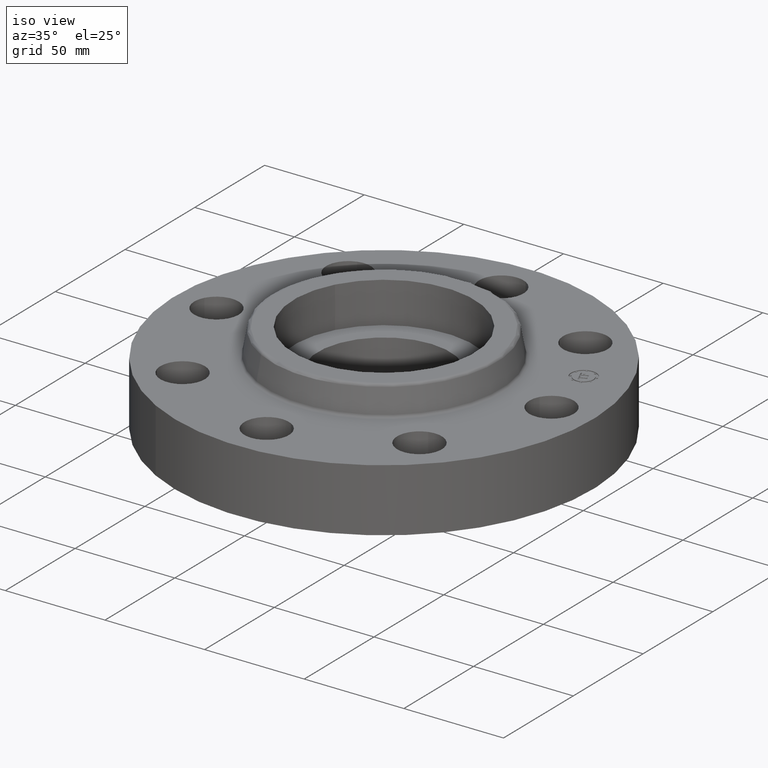
[diagram: clean part render]
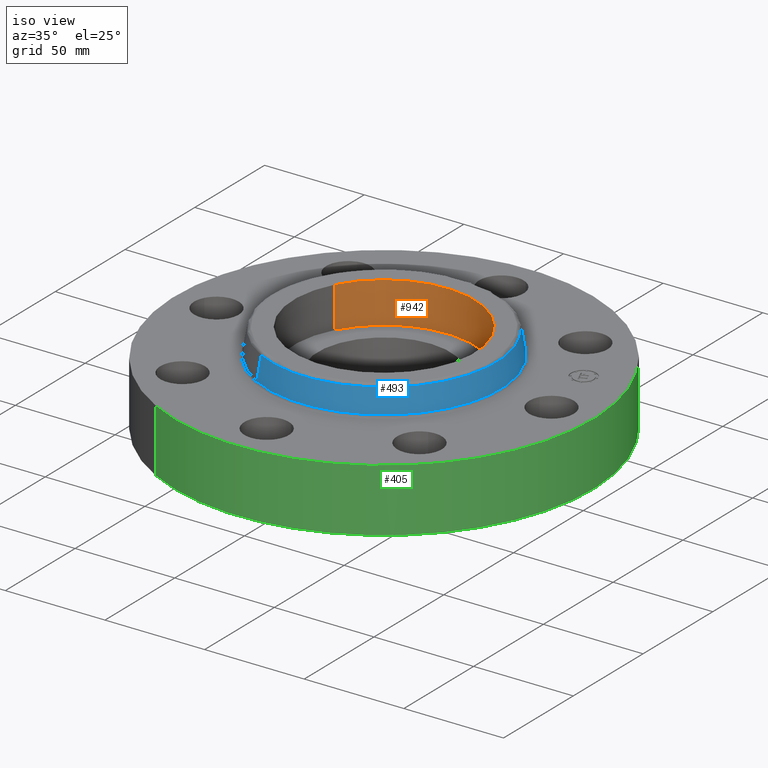
[diagram: same view with three faces highlighted in distinct colors, each labeled with its STEP entity id]
A machine part, iso view with three faces highlighted in distinct colors.
Their STEP definitions:

[orange] entity #942 — the highlighted cylindrical surface (partial cylindrical patch) has radius 45.339 mm, axis along (0, 0, -1).
#42=AXIS2_PLACEMENT_3D('Circle Axis2P3D',#40,#41,$) ;
#560=AXIS2_PLACEMENT_3D('Circle Axis2P3D',#558,#559,$) ;
#924=AXIS2_PLACEMENT_3D('Cylinder Axis2P3D',#921,#922,#923) ;
#40=CARTESIAN_POINT('Axis2P3D Location',(1.39870617276E-016,3.84644197508E-016,1.)) ;
#44=CARTESIAN_POINT('Vertex',(-1.56648487298,0.855774586412,1.)) ;
#46=CARTESIAN_POINT('Vertex',(1.56648487298,-0.855774586412,1.)) ;
#558=CARTESIAN_POINT('Axis2P3D Location',(-1.39870617276E-016,8.39223703654E-016,1.81000000001)) ;
#562=CARTESIAN_POINT('Vertex',(-1.56648487298,0.855774586412,1.81000000001)) ;
#564=CARTESIAN_POINT('Vertex',(1.56648487298,-0.855774586412,1.81000000001)) ;
#921=CARTESIAN_POINT('Axis2P3D Location',(1.39870617276E-016,3.84644197508E-016,1.80606299213)) ;
#926=CARTESIAN_POINT('Line Origine',(-1.56648487298,0.855774586412,1.40500000001)) ;
#931=CARTESIAN_POINT('Line Origine',(1.56648487298,-0.855774586412,1.40500000001)) ;
#41=DIRECTION('Axis2P3D Direction',(0.,0.,-0.0393700787402)) ;
#559=DIRECTION('Axis2P3D Direction',(0.,0.,-0.0393700787402)) ;
#922=DIRECTION('Axis2P3D Direction',(0.,0.,-0.0393700787402)) ;
#923=DIRECTION('Axis2P3D XDirection',(0.0345504945626,-0.0188750212049,0.)) ;
#927=DIRECTION('Vector Direction',(0.,0.,-0.0393700787402)) ;
#932=DIRECTION('Vector Direction',(0.,0.,-0.0393700787402)) ;
#928=VECTOR('Line Direction',#927,0.0393700787402) ;
#933=VECTOR('Line Direction',#932,0.0393700787402) ;
#937=ORIENTED_EDGE('',*,*,#566,.F.) ;
#938=ORIENTED_EDGE('',*,*,#930,.F.) ;
#939=ORIENTED_EDGE('',*,*,#48,.T.) ;
#940=ORIENTED_EDGE('',*,*,#935,.T.) ;
#942=ADVANCED_FACE('PartBody',(#941),#925,.F.) ;
#43=CIRCLE('generated circle',#42,1.78500000001) ;
#561=CIRCLE('generated circle',#560,1.78500000001) ;
#925=CYLINDRICAL_SURFACE('generated cylinder',#924,1.78500000001) ;
#48=EDGE_CURVE('',#45,#47,#43,.T.) ;
#566=EDGE_CURVE('',#563,#565,#561,.T.) ;
#930=EDGE_CURVE('',#45,#563,#929,.F.) ;
#935=EDGE_CURVE('',#47,#565,#934,.F.) ;
#936=EDGE_LOOP('',(#937,#938,#939,#940)) ;
#941=FACE_OUTER_BOUND('',#936,.T.) ;
#929=LINE('Line',#926,#928) ;
#934=LINE('Line',#931,#933) ;
#45=VERTEX_POINT('',#44) ;
#47=VERTEX_POINT('',#46) ;
#563=VERTEX_POINT('',#562) ;
#565=VERTEX_POINT('',#564) ;

[blue] entity #493 — the highlighted conical surface has half-angle 10 deg.
#429=AXIS2_PLACEMENT_3D('Circle Axis2P3D',#427,#428,$) ;
#466=AXIS2_PLACEMENT_3D('Cone Axis2P3D',#463,#464,#465) ;
#477=AXIS2_PLACEMENT_3D('Circle Axis2P3D',#475,#476,$) ;
#424=CARTESIAN_POINT('Vertex',(1.10328162249,2.01954346356,1.29958110935)) ;
#427=CARTESIAN_POINT('Axis2P3D Location',(0.,0.,1.29958110935)) ;
#431=CARTESIAN_POINT('Vertex',(-1.10328162249,-2.01954346356,1.29958110935)) ;
#463=CARTESIAN_POINT('Axis2P3D Location',(0.,0.,1.76041889067)) ;
#468=CARTESIAN_POINT('Line Origine',(1.08380301002,1.98388810261,1.53000000001)) ;
#472=CARTESIAN_POINT('Vertex',(1.06432439756,1.94823274165,1.76041889067)) ;
#475=CARTESIAN_POINT('Axis2P3D Location',(0.,0.,1.76041889067)) ;
#479=CARTESIAN_POINT('Vertex',(-1.06432439756,-1.94823274165,1.76041889067)) ;
#482=CARTESIAN_POINT('Line Origine',(-1.08380301002,-1.98388810261,1.53000000001)) ;
#428=DIRECTION('Axis2P3D Direction',(0.,0.,-0.0393700787402)) ;
#464=DIRECTION('Axis2P3D Direction',(0.,0.,-0.0393700787402)) ;
#465=DIRECTION('Axis2P3D XDirection',(-0.0188750212049,-0.0345504945626,0.)) ;
#469=DIRECTION('Vector Direction',(0.00327761303565,0.00599963041829,-0.03877195878)) ;
#476=DIRECTION('Axis2P3D Direction',(0.,0.,-0.0393700787402)) ;
#483=DIRECTION('Vector Direction',(-0.00327761303565,-0.00599963041829,-0.03877195878)) ;
#470=VECTOR('Line Direction',#469,0.0393700787402) ;
#484=VECTOR('Line Direction',#483,0.0393700787402) ;
#488=ORIENTED_EDGE('',*,*,#433,.F.) ;
#489=ORIENTED_EDGE('',*,*,#474,.T.) ;
#490=ORIENTED_EDGE('',*,*,#481,.T.) ;
#491=ORIENTED_EDGE('',*,*,#486,.F.) ;
#493=ADVANCED_FACE('PartBody',(#492),#467,.T.) ;
#430=CIRCLE('generated circle',#429,2.3012575127) ;
#478=CIRCLE('generated circle',#477,2.21999937812) ;
#467=CONICAL_SURFACE('Cone',#466,2.21999937812,0.174532925199) ;
#433=EDGE_CURVE('',#425,#432,#430,.T.) ;
#474=EDGE_CURVE('',#425,#473,#471,.F.) ;
#481=EDGE_CURVE('',#473,#480,#478,.T.) ;
#486=EDGE_CURVE('',#432,#480,#485,.F.) ;
#487=EDGE_LOOP('',(#488,#489,#490,#491)) ;
#492=FACE_OUTER_BOUND('',#487,.T.) ;
#471=LINE('Line',#468,#470) ;
#485=LINE('Line',#482,#484) ;
#425=VERTEX_POINT('',#424) ;
#432=VERTEX_POINT('',#431) ;
#473=VERTEX_POINT('',#472) ;
#480=VERTEX_POINT('',#479) ;

[green] entity #405 — the highlighted cylindrical surface (partial cylindrical patch) has radius 104.775 mm, axis along (0, 0, -1).
#207=AXIS2_PLACEMENT_3D('Circle Axis2P3D',#205,#206,$) ;
#366=AXIS2_PLACEMENT_3D('Cylinder Axis2P3D',#363,#364,#365) ;
#396=AXIS2_PLACEMENT_3D('Circle Axis2P3D',#394,#395,$) ;
#200=CARTESIAN_POINT('Vertex',(-1.97763034675,-3.62002806781,6.99353086378E-016)) ;
#202=CARTESIAN_POINT('Vertex',(1.97763034675,3.62002806781,6.99353086378E-016)) ;
#205=CARTESIAN_POINT('Axis2P3D Location',(0.,0.,0.)) ;
#363=CARTESIAN_POINT('Axis2P3D Location',(0.,0.,0.780000000003)) ;
#368=CARTESIAN_POINT('Line Origine',(-1.97763034675,-3.62002806781,0.625000000003)) ;
#372=CARTESIAN_POINT('Vertex',(-1.97763034675,-3.62002806781,1.25000000001)) ;
#379=CARTESIAN_POINT('Vertex',(1.97763034675,3.62002806781,1.25000000001)) ;
#382=CARTESIAN_POINT('Line Origine',(1.97763034675,3.62002806781,0.625000000003)) ;
#394=CARTESIAN_POINT('Axis2P3D Location',(0.,0.,1.25000000001)) ;
#206=DIRECTION('Axis2P3D Direction',(0.,0.,-0.0393700787402)) ;
#364=DIRECTION('Axis2P3D Direction',(0.,0.,-0.0393700787402)) ;
#365=DIRECTION('Axis2P3D XDirection',(0.0188750212049,0.0345504945626,0.)) ;
#369=DIRECTION('Vector Direction',(0.,0.,-0.0393700787402)) ;
#383=DIRECTION('Vector Direction',(0.,0.,-0.0393700787402)) ;
#395=DIRECTION('Axis2P3D Direction',(0.,0.,-0.0393700787402)) ;
#370=VECTOR('Line Direction',#369,0.0393700787402) ;
#384=VECTOR('Line Direction',#383,0.0393700787402) ;
#400=ORIENTED_EDGE('',*,*,#209,.F.) ;
#401=ORIENTED_EDGE('',*,*,#386,.T.) ;
#402=ORIENTED_EDGE('',*,*,#398,.T.) ;
#403=ORIENTED_EDGE('',*,*,#374,.F.) ;
#405=ADVANCED_FACE('PartBody',(#404),#367,.T.) ;
#208=CIRCLE('generated circle',#207,4.12500000002) ;
#397=CIRCLE('generated circle',#396,4.12500000002) ;
#367=CYLINDRICAL_SURFACE('generated cylinder',#366,4.12500000002) ;
#209=EDGE_CURVE('',#203,#201,#208,.T.) ;
#374=EDGE_CURVE('',#201,#373,#371,.F.) ;
#386=EDGE_CURVE('',#203,#380,#385,.F.) ;
#398=EDGE_CURVE('',#380,#373,#397,.T.) ;
#399=EDGE_LOOP('',(#400,#401,#402,#403)) ;
#404=FACE_OUTER_BOUND('',#399,.T.) ;
#371=LINE('Line',#368,#370) ;
#385=LINE('Line',#382,#384) ;
#201=VERTEX_POINT('',#200) ;
#203=VERTEX_POINT('',#202) ;
#373=VERTEX_POINT('',#372) ;
#380=VERTEX_POINT('',#379) ;